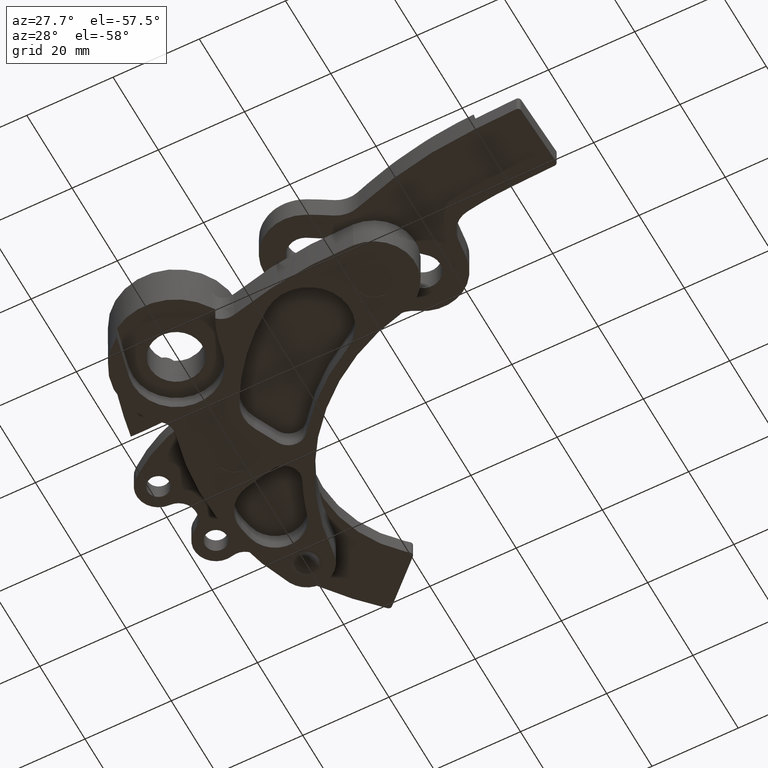
[diagram: clean part render]
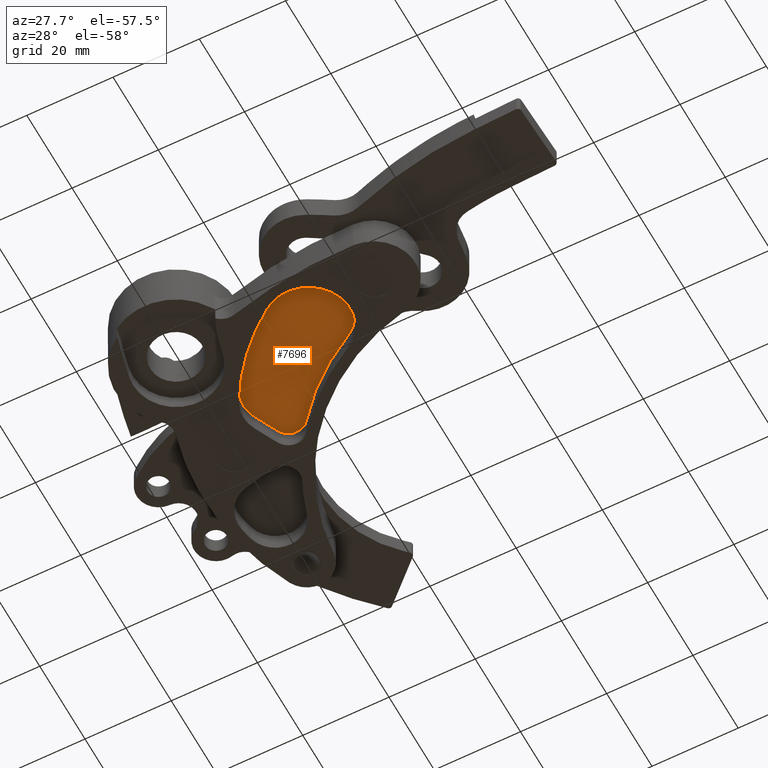
[diagram: same view with one face highlighted and labeled with its STEP entity id]
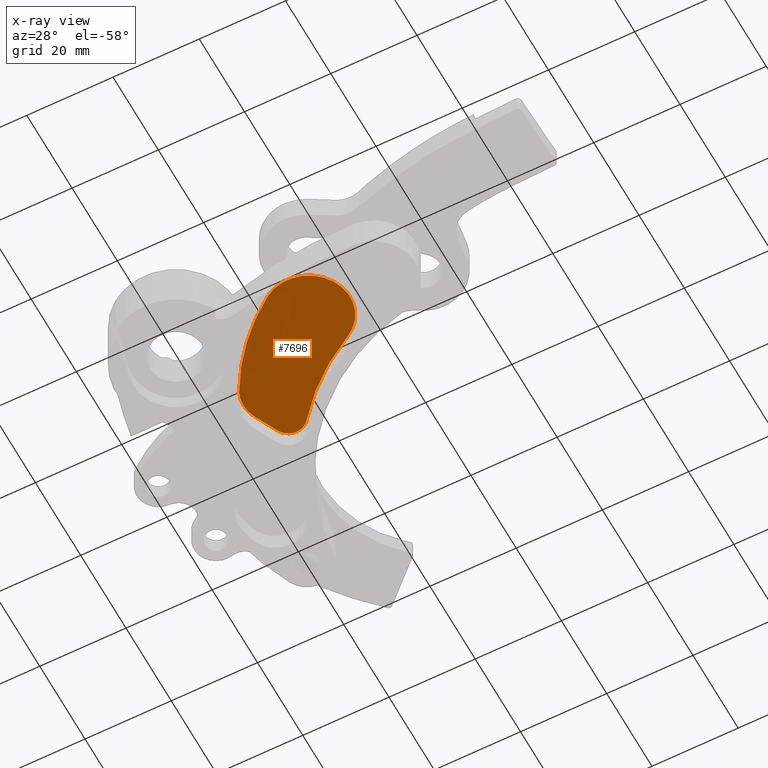
[diagram: x-ray of the same camera — body ghosted, the highlighted face saturated]
A machine part, auxiliary view. The second image highlights one B-rep face of the part: STEP entity #7696.
The next image is the same camera in x-ray: the body ghosted, the highlighted face saturated — about 0% of this face is hidden behind the body in this view.
In plain terms, the highlighted planar face has unit normal (0, -0, -1).
Its self-contained STEP definition (entity closure, byte-faithful):
#192 = CIRCLE ( 'NONE', #2484, 0.3764674611655223200 ) ;
#240 = CIRCLE ( 'NONE', #2505, 2.111280614520793600 ) ;
#247 = LINE ( 'NONE', #582, #250 ) ;
#250 = VECTOR ( 'NONE', #573, 39.37007874015748900 ) ;
#259 = CIRCLE ( 'NONE', #2511, 2.000000000000028000 ) ;
#262 = CIRCLE ( 'NONE', #2512, 0.3013471257048480600 ) ;
#267 = CIRCLE ( 'NONE', #2515, 0.1499999999998582500 ) ;
#442 = CARTESIAN_POINT ( 'NONE',  ( 4.707086355928432800, -5.705471237696857900, -0.1771653543307086500 ) ) ;
#443 = DIRECTION ( 'NONE',  ( 0.0000000000000000000, 0.0000000000000000000, 1.000000000000000000 ) ) ;
#444 = DIRECTION ( 'NONE',  ( 1.000000000000000000, 0.0000000000000000000, 0.0000000000000000000 ) ) ;
#570 = CARTESIAN_POINT ( 'NONE',  ( 7.081488472039823500, -4.963106718685666300, -0.1771653543307086500 ) ) ;
#571 = DIRECTION ( 'NONE',  ( -0.0000000000000000000, -0.0000000000000000000, -1.000000000000000000 ) ) ;
#572 = DIRECTION ( 'NONE',  ( 1.000000000000000000, 0.0000000000000000000, 0.0000000000000000000 ) ) ;
#573 = DIRECTION ( 'NONE',  ( 0.9625385879605000700, 0.2711447338360206100, -0.0000000000000000000 ) ) ;
#582 = CARTESIAN_POINT ( 'NONE',  ( 5.418336661430401200, -6.594220646339473500, -0.1771653543307086500 ) ) ;
#600 = CARTESIAN_POINT ( 'NONE',  ( 6.192151192244640600, -5.049391717675441700, -0.1771653543307086500 ) ) ;
#601 = DIRECTION ( 'NONE',  ( 0.0000000000000000000, 0.0000000000000000000, 1.000000000000000000 ) ) ;
#602 = DIRECTION ( 'NONE',  ( 1.000000000000000000, 0.0000000000000000000, 0.0000000000000000000 ) ) ;
#603 = CARTESIAN_POINT ( 'NONE',  ( 5.118407220403105000, -6.365634655086783900, -0.1771653543307086500 ) ) ;
#604 = DIRECTION ( 'NONE',  ( 0.0000000000000000000, 0.0000000000000000000, 1.000000000000000000 ) ) ;
#605 = DIRECTION ( 'NONE',  ( 1.000000000000000000, 0.0000000000000000000, 0.0000000000000000000 ) ) ;
#612 = CARTESIAN_POINT ( 'NONE',  ( 5.377664951355036700, -6.449839858145535000, -0.1771653543307086500 ) ) ;
#613 = DIRECTION ( 'NONE',  ( 0.0000000000000000000, 0.0000000000000000000, 1.000000000000000000 ) ) ;
#614 = DIRECTION ( 'NONE',  ( 1.000000000000000000, 0.0000000000000000000, 0.0000000000000000000 ) ) ;
#1666 = CARTESIAN_POINT ( 'NONE',  ( 5.418336661430401200, -6.594220646339473500, -0.1771653543307086500 ) ) ;
#1668 = CARTESIAN_POINT ( 'NONE',  ( 5.066401330452885400, -5.593130246073558400, -0.1771653543307086500 ) ) ;
#1669 = CARTESIAN_POINT ( 'NONE',  ( 4.927921180227526700, -6.599140883416569500, -0.1771653543307086500 ) ) ;
#1673 = CARTESIAN_POINT ( 'NONE',  ( 4.362727018975751200, -5.857604062458389800, -0.1771653543307086500 ) ) ;
#1674 = CARTESIAN_POINT ( 'NONE',  ( 5.490686540299518200, -6.351218762874684600, -0.1771653543307086500 ) ) ;
#1678 = CARTESIAN_POINT ( 'NONE',  ( 5.200115906594594300, -6.655692891948684000, -0.1771653543307086500 ) ) ;
#2120 = EDGE_LOOP ( 'NONE', ( #8154, #8268, #8140, #8245, #8261, #8264 ) ) ;
#2246 = EDGE_CURVE ( 'NONE', #7246, #7284, #192, .T. ) ;
#2287 = EDGE_CURVE ( 'NONE', #7296, #7246, #240, .T. ) ;
#2292 = EDGE_CURVE ( 'NONE', #7285, #7237, #247, .T. ) ;
#2299 = EDGE_CURVE ( 'NONE', #7284, #7272, #259, .T. ) ;
#2300 = EDGE_CURVE ( 'NONE', #7272, #7285, #262, .T. ) ;
#2304 = EDGE_CURVE ( 'NONE', #7237, #7296, #267, .T. ) ;
#2484 = AXIS2_PLACEMENT_3D ( 'NONE', #442, #443, #444 ) ;
#2505 = AXIS2_PLACEMENT_3D ( 'NONE', #570, #571, #572 ) ;
#2511 = AXIS2_PLACEMENT_3D ( 'NONE', #600, #601, #602 ) ;
#2512 = AXIS2_PLACEMENT_3D ( 'NONE', #603, #604, #605 ) ;
#2515 = AXIS2_PLACEMENT_3D ( 'NONE', #612, #613, #614 ) ;
#4100 = CARTESIAN_POINT ( 'NONE',  ( 5.377664951355036700, -6.449839858145535000, -0.1771653543307086500 ) ) ;
#4102 = PLANE ( 'NONE',  #8472 ) ;
#4104 = DIRECTION ( 'NONE',  ( 0.0000000000000000000, 0.0000000000000000000, 1.000000000000000000 ) ) ;
#4105 = DIRECTION ( 'NONE',  ( 1.000000000000000000, 0.0000000000000000000, -0.0000000000000000000 ) ) ;
#4296 = FACE_OUTER_BOUND ( 'NONE', #2120, .T. ) ;
#7237 = VERTEX_POINT ( 'NONE', #1666 ) ;
#7246 = VERTEX_POINT ( 'NONE', #1668 ) ;
#7272 = VERTEX_POINT ( 'NONE', #1669 ) ;
#7284 = VERTEX_POINT ( 'NONE', #1673 ) ;
#7285 = VERTEX_POINT ( 'NONE', #1678 ) ;
#7296 = VERTEX_POINT ( 'NONE', #1674 ) ;
#7696 = ADVANCED_FACE ( 'NONE', ( #4296 ), #4102, .T. ) ;
#8140 = ORIENTED_EDGE ( 'NONE', *, *, #2246, .T. ) ;
#8154 = ORIENTED_EDGE ( 'NONE', *, *, #2304, .T. ) ;
#8245 = ORIENTED_EDGE ( 'NONE', *, *, #2299, .T. ) ;
#8261 = ORIENTED_EDGE ( 'NONE', *, *, #2300, .T. ) ;
#8264 = ORIENTED_EDGE ( 'NONE', *, *, #2292, .T. ) ;
#8268 = ORIENTED_EDGE ( 'NONE', *, *, #2287, .T. ) ;
#8472 = AXIS2_PLACEMENT_3D ( 'NONE', #4100, #4104, #4105 ) ;